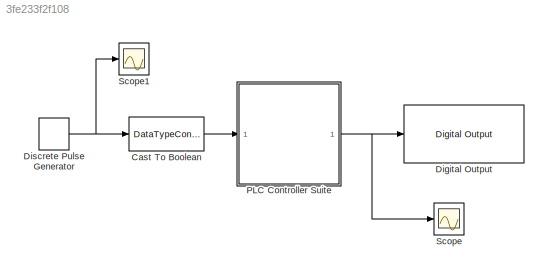
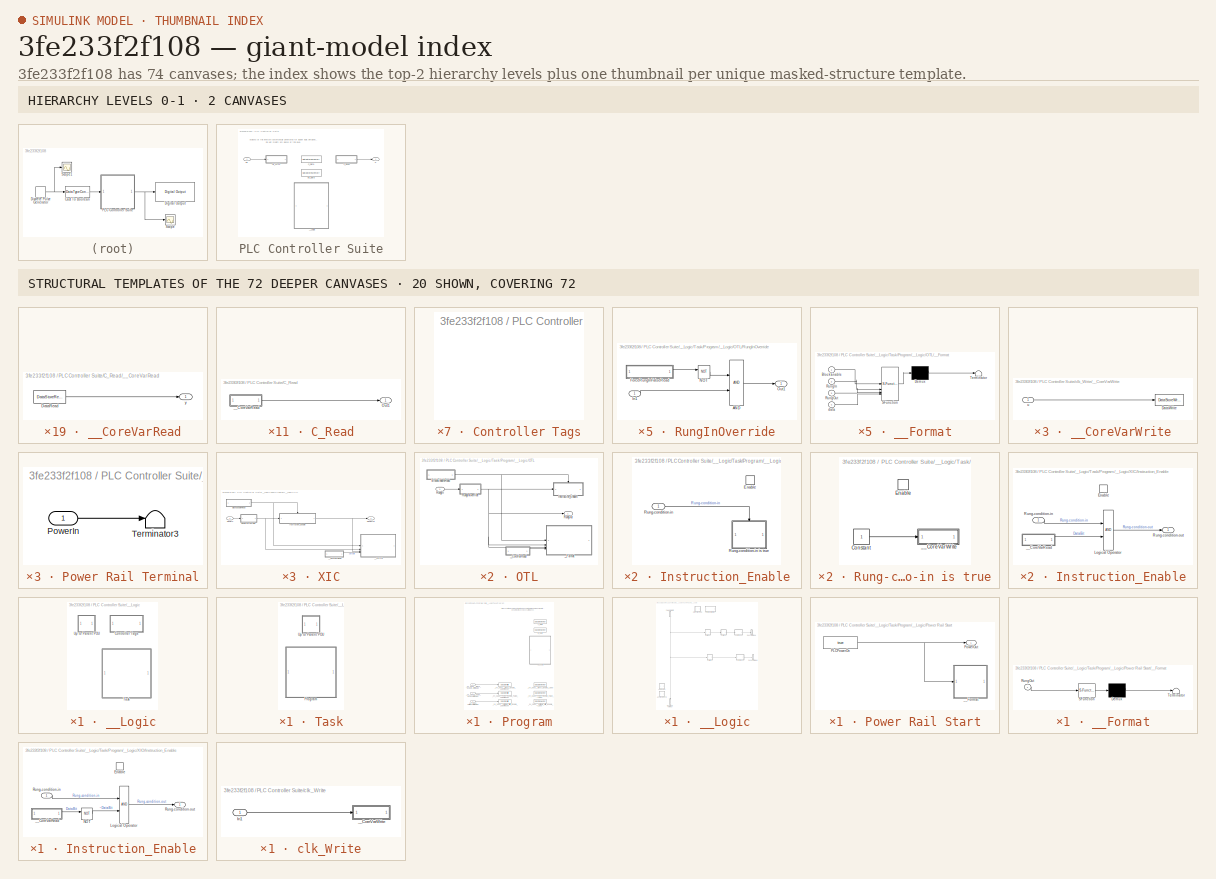
[diagram: thumbnail index - top-2 hierarchy levels (2 canvases) + 20 structural-template representatives of the remaining 72 canvases]
MODEL slx_3fe233f2f108
KIND model
CONFIG AbsTol = auto
CONFIG EnableMultiTasking = off
CONFIG FixedStep = auto
CONFIG MaxStep = auto
CONFIG MinStep = auto
CONFIG RelTol = 1e-3
CONFIG SampleTimeConstraint = Unconstrained
CONFIG SolverName = FixedStepAuto
CONFIG StartTime = 0.0
CONFIG StopTime = 10.0
BLOCK [DataTypeConversion] Cast To Boolean
  OutDataTypeStr = boolean
  RndMeth = Floor
  SaturateOnIntegerOverflow = off
BLOCK [Reference] Digital Output  REF=arduinolib/Digital Output
  SourceBlock = arduinolib/Digital Output
  SourceType = Arduino Digital Output
BLOCK [DiscretePulseGenerator] Discrete Pulse Generator
BLOCK [SubSystem] PLC Controller Suite
  NameLocation = top
  OpenFcn = slplc.callbacks.openPOUBlock(gcb);
  TreatAsAtomicUnit = on
BLOCK [Outport] PLC Controller Suite/C
BLOCK [DataStoreMemory] PLC Controller Suite/C_Data
  DataStoreName = xxx_PLC_VAR_C
  Dimensions = 1
  OutDataTypeStr = boolean
  Priority = 10
  ShowAdditionalParam = off
  SignalType = real
  Tag = POUVariable
BLOCK [SubSystem] PLC Controller Suite/C_Read
  DisableCoverage = on
  MaskHideContents = on
  Priority = 13
  ShowPortLabels = none
  TreatAsAtomicUnit = on
BLOCK [Outport] PLC Controller Suite/C_Read/Out1
  VectorParamsAs1DForOutWhenUnconnected = off
BLOCK [SubSystem] PLC Controller Suite/C_Read/__CoreVarRead
  DisableCoverage = on
  MaskHideContents = on
  ShowPortLabels = none
  Tag = CoreVarReadBlock
  TreatAsAtomicUnit = on
BLOCK [DataStoreRead] PLC Controller Suite/C_Read/__CoreVarRead/DataRead
  DataStoreName = xxx_PLC_VAR_C
  IndexOptions = Index vector (dialog)
  Indices = 1
  OutputSizes = 1
BLOCK [Outport] PLC Controller Suite/C_Read/__CoreVarRead/y
  VectorParamsAs1DForOutWhenUnconnected = off
BLOCK [SubSystem] PLC Controller Suite/__Logic
  Priority = 12
  TreatAsAtomicUnit = on
  UserDataPersistent = on
BLOCK [SubSystem] PLC Controller Suite/__Logic/Controller Tags
  DisableCoverage = on
  MaskHideContents = on
  OpenFcn = slplc.callbacks.openControllerVariableSS(gcb);
  Tag = ControllerVariableSS
  TreatAsAtomicUnit = on
  UserDataPersistent = on
BLOCK [SubSystem] PLC Controller Suite/__Logic/Task
  NameLocation = top
  OpenFcn = slplc.callbacks.openTaskBlock(gcb);
  TreatAsAtomicUnit = on
BLOCK [SubSystem] PLC Controller Suite/__Logic/Task/Program
  NameLocation = top
  OpenFcn = slplc.callbacks.openPOUBlock(gcb);
  TreatAsAtomicUnit = on
BLOCK [DataStoreMemory] PLC Controller Suite/__Logic/Task/Program/A_Data
  DataStoreName = xxx_PLC_VAR_A
  Dimensions = 1
  InitialValue = true
  OutDataTypeStr = BOOL
  Priority = 10
  ShowAdditionalParam = off
  SignalType = real
  Tag = POUVariable
BLOCK [DataStoreMemory] PLC Controller Suite/__Logic/Task/Program/B_Data
  DataStoreName = xxx_PLC_VAR_B
  Dimensions = 1
  InitialValue = false
  OutDataTypeStr = BOOL
  Priority = 10
  ShowAdditionalParam = off
  SignalType = real
  Tag = POUVariable
BLOCK [SubSystem] PLC Controller Suite/__Logic/Task/Program/__Logic
  Priority = 12
  TreatAsAtomicUnit = on
  UserDataPersistent = on
BLOCK [SubSystem] PLC Controller Suite/__Logic/Task/Program/__Logic/Add Rungs
  DisableCoverage = on
  MaskHideContents = on
  TreatAsAtomicUnit = on
BLOCK [SubSystem] PLC Controller Suite/__Logic/Task/Program/__Logic/Add Single Rung
  DisableCoverage = on
  MaskHideContents = on
  OpenFcn = slplc.callbacks.addLadderRungs(gcb);
  TreatAsAtomicUnit = on
BLOCK [SubSystem] PLC Controller Suite/__Logic/Task/Program/__Logic/OTL
  AttributesFormatString = %<PLCOperandTag>
  MaskHideContents = on
  NameLocation = top
  Priority = 4
  TreatAsAtomicUnit = on
BLOCK [SubSystem] PLC Controller Suite/__Logic/Task/Program/__Logic/OTL/BlockEnableRead
  DisableCoverage = on
  MaskHideContents = on
  ShowPortLabels = none
  TreatAsAtomicUnit = on
BLOCK [Outport] PLC Controller Suite/__Logic/Task/Program/__Logic/OTL/BlockEnableRead/Out1
  VectorParamsAs1DForOutWhenUnconnected = off
BLOCK [SubSystem] PLC Controller Suite/__Logic/Task/Program/__Logic/OTL/BlockEnableRead/__CoreLabelRead
  DisableCoverage = on
  MaskHideContents = on
  ShowPortLabels = none
  Tag = CoreVarReadBlock
  TreatAsAtomicUnit = on
BLOCK [DataStoreRead] PLC Controller Suite/__Logic/Task/Program/__Logic/OTL/BlockEnableRead/__CoreLabelRead/DataRead
  DataStoreName = x_PLCLabel__s4_3653__Block_Enable
  IndexOptions = Index vector (dialog)
  Indices = 1
  OutputSizes = 1
BLOCK [Outport] PLC Controller Suite/__Logic/Task/Program/__Logic/OTL/BlockEnableRead/__CoreLabelRead/Out1
  VectorParamsAs1DForOutWhenUnconnected = off
BLOCK [SubSystem] PLC Controller Suite/__Logic/Task/Program/__Logic/OTL/Instruction_Enable
  Priority = 12
  TreatAsAtomicUnit = on
BLOCK [EnablePort] PLC Controller Suite/__Logic/Task/Program/__Logic/OTL/Instruction_Enable/Enable
BLOCK [Inport] PLC Controller Suite/__Logic/Task/Program/__Logic/OTL/Instruction_Enable/Rung-condition-in
  OutDataTypeStr = BOOL
BLOCK [SubSystem] PLC Controller Suite/__Logic/Task/Program/__Logic/OTL/Instruction_Enable/Rung-condition-in is true
  Priority = 12
BLOCK [Constant] PLC Controller Suite/__Logic/Task/Program/__Logic/OTL/Instruction_Enable/Rung-condition-in is true/Constant
  OutDataTypeStr = BOOL
BLOCK [EnablePort] PLC Controller Suite/__Logic/Task/Program/__Logic/OTL/Instruction_Enable/Rung-condition-in is true/Enable
BLOCK [SubSystem] PLC Controller Suite/__Logic/Task/Program/__Logic/OTL/Instruction_Enable/Rung-condition-in is true/__CoreVarWrite
  DisableCoverage = on
  MaskHideContents = on
  ShowPortLabels = none
  Tag = CoreVarWriteBlock
  TreatAsAtomicUnit = on
BLOCK [DataStoreWrite] PLC Controller Suite/__Logic/Task/Program/__Logic/OTL/Instruction_Enable/Rung-condition-in is true/__CoreVarWrite/DataWrite
  DataStoreName = xxx_PLC_VAR_C
  IndexOptions = Index vector (dialog)
  Indices = 1
  OutputSizes = 1
BLOCK [Inport] PLC Controller Suite/__Logic/Task/Program/__Logic/OTL/Instruction_Enable/Rung-condition-in is true/__CoreVarWrite/u
BLOCK [Inport] PLC Controller Suite/__Logic/Task/Program/__Logic/OTL/RungIn
  PortDimensions = 1
  VarSizeSig = No
BLOCK [SubSystem] PLC Controller Suite/__Logic/Task/Program/__Logic/OTL/RungInOverride
  DisableCoverage = on
  MaskHideContents = on
  TreatAsAtomicUnit = on
BLOCK [Logic] PLC Controller Suite/__Logic/Task/Program/__Logic/OTL/RungInOverride/AND
  AllPortsSameDT = off
  OutDataTypeStr = boolean
BLOCK [SubSystem] PLC Controller Suite/__Logic/Task/Program/__Logic/OTL/RungInOverride/ForceRungInFalseRead
  DisableCoverage = on
  MaskHideContents = on
  ShowPortLabels = none
  TreatAsAtomicUnit = on
BLOCK [Outport] PLC Controller Suite/__Logic/Task/Program/__Logic/OTL/RungInOverride/ForceRungInFalseRead/Out1
  VectorParamsAs1DForOutWhenUnconnected = off
BLOCK [SubSystem] PLC Controller Suite/__Logic/Task/Program/__Logic/OTL/RungInOverride/ForceRungInFalseRead/__CoreLabelRead
  DisableCoverage = on
  MaskHideContents = on
  ShowPortLabels = none
  Tag = CoreVarReadBlock
  TreatAsAtomicUnit = on
BLOCK [DataStoreRead] PLC Controller Suite/__Logic/Task/Program/__Logic/OTL/RungInOverride/ForceRungInFalseRead/__CoreLabelRead/DataRead
  DataStoreName = x_PLCLabel__s4_3653__Force_RungIn_False
  IndexOptions = Index vector (dialog)
  Indices = 1
  OutputSizes = 1
BLOCK [Outport] PLC Controller Suite/__Logic/Task/Program/__Logic/OTL/RungInOverride/ForceRungInFalseRead/__CoreLabelRead/Out1
  VectorParamsAs1DForOutWhenUnconnected = off
BLOCK [Inport] PLC Controller Suite/__Logic/Task/Program/__Logic/OTL/RungInOverride/In1
BLOCK [Logic] PLC Controller Suite/__Logic/Task/Program/__Logic/OTL/RungInOverride/NOT
  AllPortsSameDT = off
  IconShape = distinctive
  Operator = NOT
  OutDataTypeStr = boolean
BLOCK [Outport] PLC Controller Suite/__Logic/Task/Program/__Logic/OTL/RungInOverride/Out1
  VectorParamsAs1DForOutWhenUnconnected = off
BLOCK [Outport] PLC Controller Suite/__Logic/Task/Program/__Logic/OTL/RungOut
  InitialOutput = false
  OutDataTypeStr = BOOL
  PortDimensions = 1
  VarSizeSig = No
  VectorParamsAs1DForOutWhenUnconnected = off
BLOCK [SubSystem] PLC Controller Suite/__Logic/Task/Program/__Logic/OTL/__CoreVarRead
  DisableCoverage = on
  MaskHideContents = on
  ShowPortLabels = none
  Tag = CoreVarReadBlock
  TreatAsAtomicUnit = on
BLOCK [DataStoreRead] PLC Controller Suite/__Logic/Task/Program/__Logic/OTL/__CoreVarRead/DataRead
  DataStoreName = xxx_PLC_VAR_C
  IndexOptions = Index vector (dialog)
  Indices = 1
  OutputSizes = 1
BLOCK [Outport] PLC Controller Suite/__Logic/Task/Program/__Logic/OTL/__CoreVarRead/y
  VectorParamsAs1DForOutWhenUnconnected = off
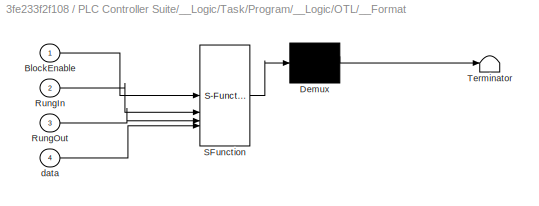
BLOCK [SubSystem] PLC Controller Suite/__Logic/Task/Program/__Logic/OTL/__Format
  DisableCoverage = on
  ErrorFcn = Stateflow.Translate.translate
  InitFcn = slplc.utils.setBlockAppearance('reset', '%<PLCOperandTag>');
  MaskHideContents = on
  PermitHierarchicalResolution = ExplicitOnly
  Priority = 20
  SFBlockType = MATLAB Function
  StopFcn = slplc.utils.setBlockAppearance('reset', '%<PLCOperandTag>');
  Tag = PLC_Format_Boolean
  TreatAsAtomicUnit = on
BLOCK [Demux] PLC Controller Suite/__Logic/Task/Program/__Logic/OTL/__Format/ Demux 
  Outputs = 1
BLOCK [S-Function] PLC Controller Suite/__Logic/Task/Program/__Logic/OTL/__Format/ SFunction 
  EnableBusSupport = on
  FunctionName = sf_sfun
  PortCounts = [4 1]
  SFcnIsStateOwnerBlock = off
  SFunctionDeploymentMode = off
  Tag = Stateflow S-Function 6
BLOCK [Terminator] PLC Controller Suite/__Logic/Task/Program/__Logic/OTL/__Format/ Terminator 
BLOCK [Inport] PLC Controller Suite/__Logic/Task/Program/__Logic/OTL/__Format/BlockEnable
BLOCK [Inport] PLC Controller Suite/__Logic/Task/Program/__Logic/OTL/__Format/RungIn
  Port = 2
BLOCK [Inport] PLC Controller Suite/__Logic/Task/Program/__Logic/OTL/__Format/RungOut
  Port = 3
BLOCK [Inport] PLC Controller Suite/__Logic/Task/Program/__Logic/OTL/__Format/data
  Port = 4
BLOCK [SubSystem] PLC Controller Suite/__Logic/Task/Program/__Logic/OTU
  AttributesFormatString = %<PLCOperandTag>
  MaskHideContents = on
  NameLocation = top
  Priority = 7
  TreatAsAtomicUnit = on
BLOCK [SubSystem] PLC Controller Suite/__Logic/Task/Program/__Logic/OTU/BlockEnableRead
  DisableCoverage = on
  MaskHideContents = on
  ShowPortLabels = none
  TreatAsAtomicUnit = on
BLOCK [Outport] PLC Controller Suite/__Logic/Task/Program/__Logic/OTU/BlockEnableRead/Out1
  VectorParamsAs1DForOutWhenUnconnected = off
BLOCK [SubSystem] PLC Controller Suite/__Logic/Task/Program/__Logic/OTU/BlockEnableRead/__CoreLabelRead
  DisableCoverage = on
  MaskHideContents = on
  ShowPortLabels = none
  Tag = CoreVarReadBlock
  TreatAsAtomicUnit = on
BLOCK [DataStoreRead] PLC Controller Suite/__Logic/Task/Program/__Logic/OTU/BlockEnableRead/__CoreLabelRead/DataRead
  DataStoreName = x_PLCLabel__s4_3653__Block_Enable
  IndexOptions = Index vector (dialog)
  Indices = 1
  OutputSizes = 1
BLOCK [Outport] PLC Controller Suite/__Logic/Task/Program/__Logic/OTU/BlockEnableRead/__CoreLabelRead/Out1
  VectorParamsAs1DForOutWhenUnconnected = off
BLOCK [SubSystem] PLC Controller Suite/__Logic/Task/Program/__Logic/OTU/Instruction_Enable
  Priority = 12
  TreatAsAtomicUnit = on
BLOCK [EnablePort] PLC Controller Suite/__Logic/Task/Program/__Logic/OTU/Instruction_Enable/Enable
BLOCK [Inport] PLC Controller Suite/__Logic/Task/Program/__Logic/OTU/Instruction_Enable/Rung-condition-in
  OutDataTypeStr = BOOL
BLOCK [SubSystem] PLC Controller Suite/__Logic/Task/Program/__Logic/OTU/Instruction_Enable/Rung-condition-in is true
  Priority = 12
BLOCK [Constant] PLC Controller Suite/__Logic/Task/Program/__Logic/OTU/Instruction_Enable/Rung-condition-in is true/Constant
  OutDataTypeStr = BOOL
  Value = 0
BLOCK [EnablePort] PLC Controller Suite/__Logic/Task/Program/__Logic/OTU/Instruction_Enable/Rung-condition-in is true/Enable
BLOCK [SubSystem] PLC Controller Suite/__Logic/Task/Program/__Logic/OTU/Instruction_Enable/Rung-condition-in is true/__CoreVarWrite
  DisableCoverage = on
  MaskHideContents = on
  ShowPortLabels = none
  Tag = CoreVarWriteBlock
  TreatAsAtomicUnit = on
BLOCK [DataStoreWrite] PLC Controller Suite/__Logic/Task/Program/__Logic/OTU/Instruction_Enable/Rung-condition-in is true/__CoreVarWrite/DataWrite
  DataStoreName = xxx_PLC_VAR_C
  IndexOptions = Index vector (dialog)
  Indices = 1
  OutputSizes = 1
BLOCK [Inport] PLC Controller Suite/__Logic/Task/Program/__Logic/OTU/Instruction_Enable/Rung-condition-in is true/__CoreVarWrite/u
BLOCK [Inport] PLC Controller Suite/__Logic/Task/Program/__Logic/OTU/RungIn
  PortDimensions = 1
  VarSizeSig = No
BLOCK [SubSystem] PLC Controller Suite/__Logic/Task/Program/__Logic/OTU/RungInOverride
  DisableCoverage = on
  MaskHideContents = on
  TreatAsAtomicUnit = on
BLOCK [Logic] PLC Controller Suite/__Logic/Task/Program/__Logic/OTU/RungInOverride/AND
  AllPortsSameDT = off
  OutDataTypeStr = boolean
BLOCK [SubSystem] PLC Controller Suite/__Logic/Task/Program/__Logic/OTU/RungInOverride/ForceRungInFalseRead
  DisableCoverage = on
  MaskHideContents = on
  ShowPortLabels = none
  TreatAsAtomicUnit = on
BLOCK [Outport] PLC Controller Suite/__Logic/Task/Program/__Logic/OTU/RungInOverride/ForceRungInFalseRead/Out1
  VectorParamsAs1DForOutWhenUnconnected = off
BLOCK [SubSystem] PLC Controller Suite/__Logic/Task/Program/__Logic/OTU/RungInOverride/ForceRungInFalseRead/__CoreLabelRead
  DisableCoverage = on
  MaskHideContents = on
  ShowPortLabels = none
  Tag = CoreVarReadBlock
  TreatAsAtomicUnit = on
BLOCK [DataStoreRead] PLC Controller Suite/__Logic/Task/Program/__Logic/OTU/RungInOverride/ForceRungInFalseRead/__CoreLabelRead/DataRead
  DataStoreName = x_PLCLabel__s4_3653__Force_RungIn_False
  IndexOptions = Index vector (dialog)
  Indices = 1
  OutputSizes = 1
BLOCK [Outport] PLC Controller Suite/__Logic/Task/Program/__Logic/OTU/RungInOverride/ForceRungInFalseRead/__CoreLabelRead/Out1
  VectorParamsAs1DForOutWhenUnconnected = off
BLOCK [Inport] PLC Controller Suite/__Logic/Task/Program/__Logic/OTU/RungInOverride/In1
BLOCK [Logic] PLC Controller Suite/__Logic/Task/Program/__Logic/OTU/RungInOverride/NOT
  AllPortsSameDT = off
  IconShape = distinctive
  Operator = NOT
  OutDataTypeStr = boolean
BLOCK [Outport] PLC Controller Suite/__Logic/Task/Program/__Logic/OTU/RungInOverride/Out1
  VectorParamsAs1DForOutWhenUnconnected = off
BLOCK [Outport] PLC Controller Suite/__Logic/Task/Program/__Logic/OTU/RungOut
  InitialOutput = false
  OutDataTypeStr = BOOL
  PortDimensions = 1
  VarSizeSig = No
  VectorParamsAs1DForOutWhenUnconnected = off
BLOCK [SubSystem] PLC Controller Suite/__Logic/Task/Program/__Logic/OTU/__CoreVarRead
  DisableCoverage = on
  MaskHideContents = on
  ShowPortLabels = none
  Tag = CoreVarReadBlock
  TreatAsAtomicUnit = on
BLOCK [DataStoreRead] PLC Controller Suite/__Logic/Task/Program/__Logic/OTU/__CoreVarRead/DataRead
  DataStoreName = xxx_PLC_VAR_C
  IndexOptions = Index vector (dialog)
  Indices = 1
  OutputSizes = 1
BLOCK [Outport] PLC Controller Suite/__Logic/Task/Program/__Logic/OTU/__CoreVarRead/y
  VectorParamsAs1DForOutWhenUnconnected = off
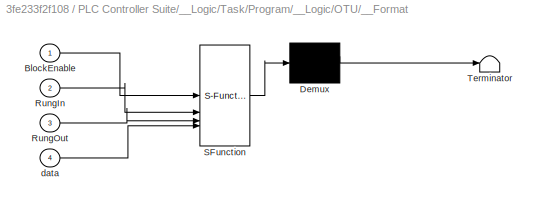
BLOCK [SubSystem] PLC Controller Suite/__Logic/Task/Program/__Logic/OTU/__Format
  DisableCoverage = on
  ErrorFcn = Stateflow.Translate.translate
  InitFcn = slplc.utils.setBlockAppearance('reset', '%<PLCOperandTag>');
  MaskHideContents = on
  PermitHierarchicalResolution = ExplicitOnly
  Priority = 20
  SFBlockType = MATLAB Function
  StopFcn = slplc.utils.setBlockAppearance('reset', '%<PLCOperandTag>');
  Tag = PLC_Format_Boolean
  TreatAsAtomicUnit = on
BLOCK [Demux] PLC Controller Suite/__Logic/Task/Program/__Logic/OTU/__Format/ Demux 
  Outputs = 1
BLOCK [S-Function] PLC Controller Suite/__Logic/Task/Program/__Logic/OTU/__Format/ SFunction 
  EnableBusSupport = on
  FunctionName = sf_sfun
  PortCounts = [4 1]
  SFcnIsStateOwnerBlock = off
  SFunctionDeploymentMode = off
  Tag = Stateflow S-Function 9
BLOCK [Terminator] PLC Controller Suite/__Logic/Task/Program/__Logic/OTU/__Format/ Terminator 
BLOCK [Inport] PLC Controller Suite/__Logic/Task/Program/__Logic/OTU/__Format/BlockEnable
BLOCK [Inport] PLC Controller Suite/__Logic/Task/Program/__Logic/OTU/__Format/RungIn
  Port = 2
BLOCK [Inport] PLC Controller Suite/__Logic/Task/Program/__Logic/OTU/__Format/RungOut
  Port = 3
BLOCK [Inport] PLC Controller Suite/__Logic/Task/Program/__Logic/OTU/__Format/data
  Port = 4
BLOCK [SubSystem] PLC Controller Suite/__Logic/Task/Program/__Logic/Power Rail Start
  DisableCoverage = on
  MaskHideContents = on
  Priority = 1
  ShowPortLabels = none
  TreatAsAtomicUnit = on
BLOCK [Constant] PLC Controller Suite/__Logic/Task/Program/__Logic/Power Rail Start/PLCPowerOn
  OutDataTypeStr = BOOL
  Value = true
BLOCK [Outport] PLC Controller Suite/__Logic/Task/Program/__Logic/Power Rail Start/PowerOut
  VectorParamsAs1DForOutWhenUnconnected = off
BLOCK [SubSystem] PLC Controller Suite/__Logic/Task/Program/__Logic/Power Rail Start/__Format
  DisableCoverage = on
  ErrorFcn = Stateflow.Translate.translate
  InitFcn = slplc.utils.setBlockAppearance('reset', '', {'black', 'black'});
  MaskHideContents = on
  PermitHierarchicalResolution = ExplicitOnly
  Priority = 20
  SFBlockType = MATLAB Function
  StopFcn = slplc.utils.setBlockAppearance('reset', '', {'black', 'black'});
  Tag = PLC_Format_ENO
  TreatAsAtomicUnit = on
BLOCK [Demux] PLC Controller Suite/__Logic/Task/Program/__Logic/Power Rail Start/__Format/ Demux 
  Outputs = 1
BLOCK [S-Function] PLC Controller Suite/__Logic/Task/Program/__Logic/Power Rail Start/__Format/ SFunction 
  EnableBusSupport = on
  FunctionName = sf_sfun
  PortCounts = [1 1]
  SFcnIsStateOwnerBlock = off
  SFunctionDeploymentMode = off
  Tag = Stateflow S-Function 68
BLOCK [Terminator] PLC Controller Suite/__Logic/Task/Program/__Logic/Power Rail Start/__Format/ Terminator 
BLOCK [Inport] PLC Controller Suite/__Logic/Task/Program/__Logic/Power Rail Start/__Format/RungOut
BLOCK [SubSystem] PLC Controller Suite/__Logic/Task/Program/__Logic/Power Rail Terminal
  DisableCoverage = on
  MaskHideContents = on
  Priority = 7
  ShowPortLabels = none
  TreatAsAtomicUnit = on
BLOCK [Inport] PLC Controller Suite/__Logic/Task/Program/__Logic/Power Rail Terminal/PowerIn
BLOCK [Terminator] PLC Controller Suite/__Logic/Task/Program/__Logic/Power Rail Terminal/Terminator3
BLOCK [SubSystem] PLC Controller Suite/__Logic/Task/Program/__Logic/Program Variables
  DisableCoverage = on
  MaskHideContents = on
  OpenFcn = slplc.callbacks.openProgramVariableSS(gcb);
  Tag = ProgramVariableSS
  TreatAsAtomicUnit = on
  UserDataPersistent = on
BLOCK [SubSystem] PLC Controller Suite/__Logic/Task/Program/__Logic/Rung Terminal1
  AttributesFormatString = Rung %<PLCRungTerminalIndex>
  DisableCoverage = on
  MaskHideContents = on
  NameLocation = top
  Priority = 5
  ShowPortLabels = none
  TreatAsAtomicUnit = on
BLOCK [Inport] PLC Controller Suite/__Logic/Task/Program/__Logic/Rung Terminal1/RungIn
BLOCK [Terminator] PLC Controller Suite/__Logic/Task/Program/__Logic/Rung Terminal1/Terminator
BLOCK [SubSystem] PLC Controller Suite/__Logic/Task/Program/__Logic/Rung Terminal2
  AttributesFormatString = Rung %<PLCRungTerminalIndex>
  DisableCoverage = on
  MaskHideContents = on
  NameLocation = top
  Priority = 8
  ShowPortLabels = none
  TreatAsAtomicUnit = on
BLOCK [Inport] PLC Controller Suite/__Logic/Task/Program/__Logic/Rung Terminal2/RungIn
BLOCK [Terminator] PLC Controller Suite/__Logic/Task/Program/__Logic/Rung Terminal2/Terminator
BLOCK [SubSystem] PLC Controller Suite/__Logic/Task/Program/__Logic/Up to Parent POU
  DisableCoverage = on
  MaskHideContents = on
  OpenFcn = slplc.callbacks.openParentPOUBlock(gcb);
  TreatAsAtomicUnit = on
BLOCK [SubSystem] PLC Controller Suite/__Logic/Task/Program/__Logic/XIC
  AttributesFormatString = %<PLCOperandTag>
  MaskHideContents = on
  NameLocation = top
  Priority = 3
  TreatAsAtomicUnit = on
BLOCK [SubSystem] PLC Controller Suite/__Logic/Task/Program/__Logic/XIC/BlockEnableRead
  DisableCoverage = on
  MaskHideContents = on
  ShowPortLabels = none
  TreatAsAtomicUnit = on
BLOCK [Outport] PLC Controller Suite/__Logic/Task/Program/__Logic/XIC/BlockEnableRead/Out1
  VectorParamsAs1DForOutWhenUnconnected = off
BLOCK [SubSystem] PLC Controller Suite/__Logic/Task/Program/__Logic/XIC/BlockEnableRead/__CoreLabelRead
  DisableCoverage = on
  MaskHideContents = on
  ShowPortLabels = none
  Tag = CoreVarReadBlock
  TreatAsAtomicUnit = on
BLOCK [DataStoreRead] PLC Controller Suite/__Logic/Task/Program/__Logic/XIC/BlockEnableRead/__CoreLabelRead/DataRead
  DataStoreName = x_PLCLabel__s4_3653__Block_Enable
  IndexOptions = Index vector (dialog)
  Indices = 1
  OutputSizes = 1
BLOCK [Outport] PLC Controller Suite/__Logic/Task/Program/__Logic/XIC/BlockEnableRead/__CoreLabelRead/Out1
  VectorParamsAs1DForOutWhenUnconnected = off
BLOCK [SubSystem] PLC Controller Suite/__Logic/Task/Program/__Logic/XIC/Instruction_Enable
  Priority = 12
  TreatAsAtomicUnit = on
BLOCK [EnablePort] PLC Controller Suite/__Logic/Task/Program/__Logic/XIC/Instruction_Enable/Enable
BLOCK [Logic] PLC Controller Suite/__Logic/Task/Program/__Logic/XIC/Instruction_Enable/Logical Operator
  OutDataTypeStr = BOOL
BLOCK [Inport] PLC Controller Suite/__Logic/Task/Program/__Logic/XIC/Instruction_Enable/Rung-condition-in
  OutDataTypeStr = BOOL
BLOCK [Outport] PLC Controller Suite/__Logic/Task/Program/__Logic/XIC/Instruction_Enable/Rung-condition-out
  VectorParamsAs1DForOutWhenUnconnected = off
BLOCK [SubSystem] PLC Controller Suite/__Logic/Task/Program/__Logic/XIC/Instruction_Enable/__CoreVarRead
  DisableCoverage = on
  MaskHideContents = on
  ShowPortLabels = none
  Tag = CoreVarReadBlock
  TreatAsAtomicUnit = on
BLOCK [DataStoreRead] PLC Controller Suite/__Logic/Task/Program/__Logic/XIC/Instruction_Enable/__CoreVarRead/DataRead
  DataStoreName = xxx_PLC_VAR_A
  IndexOptions = Index vector (dialog)
  Indices = 1
  OutputSizes = 1
BLOCK [Outport] PLC Controller Suite/__Logic/Task/Program/__Logic/XIC/Instruction_Enable/__CoreVarRead/y
  VectorParamsAs1DForOutWhenUnconnected = off
BLOCK [Inport] PLC Controller Suite/__Logic/Task/Program/__Logic/XIC/RungIn
  PortDimensions = 1
  VarSizeSig = No
BLOCK [SubSystem] PLC Controller Suite/__Logic/Task/Program/__Logic/XIC/RungInOverride
  DisableCoverage = on
  MaskHideContents = on
  TreatAsAtomicUnit = on
BLOCK [Logic] PLC Controller Suite/__Logic/Task/Program/__Logic/XIC/RungInOverride/AND
  AllPortsSameDT = off
  OutDataTypeStr = boolean
BLOCK [SubSystem] PLC Controller Suite/__Logic/Task/Program/__Logic/XIC/RungInOverride/ForceRungInFalseRead
  DisableCoverage = on
  MaskHideContents = on
  ShowPortLabels = none
  TreatAsAtomicUnit = on
BLOCK [Outport] PLC Controller Suite/__Logic/Task/Program/__Logic/XIC/RungInOverride/ForceRungInFalseRead/Out1
  VectorParamsAs1DForOutWhenUnconnected = off
BLOCK [SubSystem] PLC Controller Suite/__Logic/Task/Program/__Logic/XIC/RungInOverride/ForceRungInFalseRead/__CoreLabelRead
  DisableCoverage = on
  MaskHideContents = on
  ShowPortLabels = none
  Tag = CoreVarReadBlock
  TreatAsAtomicUnit = on
BLOCK [DataStoreRead] PLC Controller Suite/__Logic/Task/Program/__Logic/XIC/RungInOverride/ForceRungInFalseRead/__CoreLabelRead/DataRead
  DataStoreName = x_PLCLabel__s4_3653__Force_RungIn_False
  IndexOptions = Index vector (dialog)
  Indices = 1
  OutputSizes = 1
BLOCK [Outport] PLC Controller Suite/__Logic/Task/Program/__Logic/XIC/RungInOverride/ForceRungInFalseRead/__CoreLabelRead/Out1
  VectorParamsAs1DForOutWhenUnconnected = off
BLOCK [Inport] PLC Controller Suite/__Logic/Task/Program/__Logic/XIC/RungInOverride/In1
BLOCK [Logic] PLC Controller Suite/__Logic/Task/Program/__Logic/XIC/RungInOverride/NOT
  AllPortsSameDT = off
  IconShape = distinctive
  Operator = NOT
  OutDataTypeStr = boolean
BLOCK [Outport] PLC Controller Suite/__Logic/Task/Program/__Logic/XIC/RungInOverride/Out1
  VectorParamsAs1DForOutWhenUnconnected = off
BLOCK [Outport] PLC Controller Suite/__Logic/Task/Program/__Logic/XIC/RungOut
  InitialOutput = false
  OutDataTypeStr = BOOL
  PortDimensions = 1
  VarSizeSig = No
  VectorParamsAs1DForOutWhenUnconnected = off
BLOCK [SubSystem] PLC Controller Suite/__Logic/Task/Program/__Logic/XIC/__CoreVarRead
  DisableCoverage = on
  MaskHideContents = on
  ShowPortLabels = none
  Tag = CoreVarReadBlock
  TreatAsAtomicUnit = on
BLOCK [DataStoreRead] PLC Controller Suite/__Logic/Task/Program/__Logic/XIC/__CoreVarRead/DataRead
  DataStoreName = xxx_PLC_VAR_A
  IndexOptions = Index vector (dialog)
  Indices = 1
  OutputSizes = 1
BLOCK [Outport] PLC Controller Suite/__Logic/Task/Program/__Logic/XIC/__CoreVarRead/y
  VectorParamsAs1DForOutWhenUnconnected = off
BLOCK [SubSystem] PLC Controller Suite/__Logic/Task/Program/__Logic/XIC/__Format
  DisableCoverage = on
  ErrorFcn = Stateflow.Translate.translate
  InitFcn = slplc.utils.setBlockAppearance('reset', '%<PLCOperandTag>');
  MaskHideContents = on
  PermitHierarchicalResolution = ExplicitOnly
  Priority = 20
  SFBlockType = MATLAB Function
  StopFcn = slplc.utils.setBlockAppearance('reset', '%<PLCOperandTag>');
  Tag = PLC_Format_Boolean
  TreatAsAtomicUnit = on
BLOCK [Demux] PLC Controller Suite/__Logic/Task/Program/__Logic/XIC/__Format/ Demux 
  Outputs = 1
BLOCK [S-Function] PLC Controller Suite/__Logic/Task/Program/__Logic/XIC/__Format/ SFunction 
  EnableBusSupport = on
  FunctionName = sf_sfun
  PortCounts = [4 1]
  SFcnIsStateOwnerBlock = off
  SFunctionDeploymentMode = off
  Tag = Stateflow S-Function 1
BLOCK [Terminator] PLC Controller Suite/__Logic/Task/Program/__Logic/XIC/__Format/ Terminator 
BLOCK [Inport] PLC Controller Suite/__Logic/Task/Program/__Logic/XIC/__Format/BlockEnable
BLOCK [Inport] PLC Controller Suite/__Logic/Task/Program/__Logic/XIC/__Format/RungIn
  Port = 2
BLOCK [Inport] PLC Controller Suite/__Logic/Task/Program/__Logic/XIC/__Format/RungOut
  Port = 3
BLOCK [Inport] PLC Controller Suite/__Logic/Task/Program/__Logic/XIC/__Format/data
  Port = 4
BLOCK [SubSystem] PLC Controller Suite/__Logic/Task/Program/__Logic/XIC2
  AttributesFormatString = %<PLCOperandTag>
  MaskHideContents = on
  NameLocation = top
  Priority = 2
  TreatAsAtomicUnit = on
BLOCK [SubSystem] PLC Controller Suite/__Logic/Task/Program/__Logic/XIC2/BlockEnableRead
  DisableCoverage = on
  MaskHideContents = on
  ShowPortLabels = none
  TreatAsAtomicUnit = on
BLOCK [Outport] PLC Controller Suite/__Logic/Task/Program/__Logic/XIC2/BlockEnableRead/Out1
  VectorParamsAs1DForOutWhenUnconnected = off
BLOCK [SubSystem] PLC Controller Suite/__Logic/Task/Program/__Logic/XIC2/BlockEnableRead/__CoreLabelRead
  DisableCoverage = on
  MaskHideContents = on
  ShowPortLabels = none
  Tag = CoreVarReadBlock
  TreatAsAtomicUnit = on
BLOCK [DataStoreRead] PLC Controller Suite/__Logic/Task/Program/__Logic/XIC2/BlockEnableRead/__CoreLabelRead/DataRead
  DataStoreName = x_PLCLabel__s4_3653__Block_Enable
  IndexOptions = Index vector (dialog)
  Indices = 1
  OutputSizes = 1
BLOCK [Outport] PLC Controller Suite/__Logic/Task/Program/__Logic/XIC2/BlockEnableRead/__CoreLabelRead/Out1
  VectorParamsAs1DForOutWhenUnconnected = off
BLOCK [SubSystem] PLC Controller Suite/__Logic/Task/Program/__Logic/XIC2/Instruction_Enable
  Priority = 12
  TreatAsAtomicUnit = on
BLOCK [EnablePort] PLC Controller Suite/__Logic/Task/Program/__Logic/XIC2/Instruction_Enable/Enable
BLOCK [Logic] PLC Controller Suite/__Logic/Task/Program/__Logic/XIC2/Instruction_Enable/Logical Operator
  OutDataTypeStr = BOOL
BLOCK [Inport] PLC Controller Suite/__Logic/Task/Program/__Logic/XIC2/Instruction_Enable/Rung-condition-in
  OutDataTypeStr = BOOL
BLOCK [Outport] PLC Controller Suite/__Logic/Task/Program/__Logic/XIC2/Instruction_Enable/Rung-condition-out
  VectorParamsAs1DForOutWhenUnconnected = off
BLOCK [SubSystem] PLC Controller Suite/__Logic/Task/Program/__Logic/XIC2/Instruction_Enable/__CoreVarRead
  DisableCoverage = on
  MaskHideContents = on
  ShowPortLabels = none
  Tag = CoreVarReadBlock
  TreatAsAtomicUnit = on
BLOCK [DataStoreRead] PLC Controller Suite/__Logic/Task/Program/__Logic/XIC2/Instruction_Enable/__CoreVarRead/DataRead
  DataStoreName = xxx_PLC_VAR_clk
  IndexOptions = Index vector (dialog)
  Indices = 1
  OutputSizes = 1
BLOCK [Outport] PLC Controller Suite/__Logic/Task/Program/__Logic/XIC2/Instruction_Enable/__CoreVarRead/y
  VectorParamsAs1DForOutWhenUnconnected = off
BLOCK [Inport] PLC Controller Suite/__Logic/Task/Program/__Logic/XIC2/RungIn
  PortDimensions = 1
  VarSizeSig = No
BLOCK [SubSystem] PLC Controller Suite/__Logic/Task/Program/__Logic/XIC2/RungInOverride
  DisableCoverage = on
  MaskHideContents = on
  TreatAsAtomicUnit = on
BLOCK [Logic] PLC Controller Suite/__Logic/Task/Program/__Logic/XIC2/RungInOverride/AND
  AllPortsSameDT = off
  OutDataTypeStr = boolean
BLOCK [SubSystem] PLC Controller Suite/__Logic/Task/Program/__Logic/XIC2/RungInOverride/ForceRungInFalseRead
  DisableCoverage = on
  MaskHideContents = on
  ShowPortLabels = none
  TreatAsAtomicUnit = on
BLOCK [Outport] PLC Controller Suite/__Logic/Task/Program/__Logic/XIC2/RungInOverride/ForceRungInFalseRead/Out1
  VectorParamsAs1DForOutWhenUnconnected = off
BLOCK [SubSystem] PLC Controller Suite/__Logic/Task/Program/__Logic/XIC2/RungInOverride/ForceRungInFalseRead/__CoreLabelRead
  DisableCoverage = on
  MaskHideContents = on
  ShowPortLabels = none
  Tag = CoreVarReadBlock
  TreatAsAtomicUnit = on
BLOCK [DataStoreRead] PLC Controller Suite/__Logic/Task/Program/__Logic/XIC2/RungInOverride/ForceRungInFalseRead/__CoreLabelRead/DataRead
  DataStoreName = x_PLCLabel__s4_3653__Force_RungIn_False
  IndexOptions = Index vector (dialog)
  Indices = 1
  OutputSizes = 1
BLOCK [Outport] PLC Controller Suite/__Logic/Task/Program/__Logic/XIC2/RungInOverride/ForceRungInFalseRead/__CoreLabelRead/Out1
  VectorParamsAs1DForOutWhenUnconnected = off
BLOCK [Inport] PLC Controller Suite/__Logic/Task/Program/__Logic/XIC2/RungInOverride/In1
BLOCK [Logic] PLC Controller Suite/__Logic/Task/Program/__Logic/XIC2/RungInOverride/NOT
  AllPortsSameDT = off
  IconShape = distinctive
  Operator = NOT
  OutDataTypeStr = boolean
BLOCK [Outport] PLC Controller Suite/__Logic/Task/Program/__Logic/XIC2/RungInOverride/Out1
  VectorParamsAs1DForOutWhenUnconnected = off
BLOCK [Outport] PLC Controller Suite/__Logic/Task/Program/__Logic/XIC2/RungOut
  InitialOutput = false
  OutDataTypeStr = BOOL
  PortDimensions = 1
  VarSizeSig = No
  VectorParamsAs1DForOutWhenUnconnected = off
BLOCK [SubSystem] PLC Controller Suite/__Logic/Task/Program/__Logic/XIC2/__CoreVarRead
  DisableCoverage = on
  MaskHideContents = on
  ShowPortLabels = none
  Tag = CoreVarReadBlock
  TreatAsAtomicUnit = on
BLOCK [DataStoreRead] PLC Controller Suite/__Logic/Task/Program/__Logic/XIC2/__CoreVarRead/DataRead
  DataStoreName = xxx_PLC_VAR_clk
  IndexOptions = Index vector (dialog)
  Indices = 1
  OutputSizes = 1
BLOCK [Outport] PLC Controller Suite/__Logic/Task/Program/__Logic/XIC2/__CoreVarRead/y
  VectorParamsAs1DForOutWhenUnconnected = off
BLOCK [SubSystem] PLC Controller Suite/__Logic/Task/Program/__Logic/XIC2/__Format
  DisableCoverage = on
  ErrorFcn = Stateflow.Translate.translate
  InitFcn = slplc.utils.setBlockAppearance('reset', '%<PLCOperandTag>');
  MaskHideContents = on
  PermitHierarchicalResolution = ExplicitOnly
  Priority = 20
  SFBlockType = MATLAB Function
  StopFcn = slplc.utils.setBlockAppearance('reset', '%<PLCOperandTag>');
  Tag = PLC_Format_Boolean
  TreatAsAtomicUnit = on
BLOCK [Demux] PLC Controller Suite/__Logic/Task/Program/__Logic/XIC2/__Format/ Demux 
  Outputs = 1
BLOCK [S-Function] PLC Controller Suite/__Logic/Task/Program/__Logic/XIC2/__Format/ SFunction 
  EnableBusSupport = on
  FunctionName = sf_sfun
  PortCounts = [4 1]
  SFcnIsStateOwnerBlock = off
  SFunctionDeploymentMode = off
  Tag = Stateflow S-Function 4
BLOCK [Terminator] PLC Controller Suite/__Logic/Task/Program/__Logic/XIC2/__Format/ Terminator 
BLOCK [Inport] PLC Controller Suite/__Logic/Task/Program/__Logic/XIC2/__Format/BlockEnable
BLOCK [Inport] PLC Controller Suite/__Logic/Task/Program/__Logic/XIC2/__Format/RungIn
  Port = 2
BLOCK [Inport] PLC Controller Suite/__Logic/Task/Program/__Logic/XIC2/__Format/RungOut
  Port = 3
BLOCK [Inport] PLC Controller Suite/__Logic/Task/Program/__Logic/XIC2/__Format/data
  Port = 4
BLOCK [SubSystem] PLC Controller Suite/__Logic/Task/Program/__Logic/XIO
  AttributesFormatString = %<PLCOperandTag>
  MaskHideContents = on
  NameLocation = top
  Priority = 6
  TreatAsAtomicUnit = on
BLOCK [SubSystem] PLC Controller Suite/__Logic/Task/Program/__Logic/XIO/BlockEnableRead
  DisableCoverage = on
  MaskHideContents = on
  ShowPortLabels = none
  TreatAsAtomicUnit = on
BLOCK [Outport] PLC Controller Suite/__Logic/Task/Program/__Logic/XIO/BlockEnableRead/Out1
  VectorParamsAs1DForOutWhenUnconnected = off
BLOCK [SubSystem] PLC Controller Suite/__Logic/Task/Program/__Logic/XIO/BlockEnableRead/__CoreLabelRead
  DisableCoverage = on
  MaskHideContents = on
  ShowPortLabels = none
  Tag = CoreVarReadBlock
  TreatAsAtomicUnit = on
BLOCK [DataStoreRead] PLC Controller Suite/__Logic/Task/Program/__Logic/XIO/BlockEnableRead/__CoreLabelRead/DataRead
  DataStoreName = x_PLCLabel__s4_3653__Block_Enable
  IndexOptions = Index vector (dialog)
  Indices = 1
  OutputSizes = 1
BLOCK [Outport] PLC Controller Suite/__Logic/Task/Program/__Logic/XIO/BlockEnableRead/__CoreLabelRead/Out1
  VectorParamsAs1DForOutWhenUnconnected = off
BLOCK [SubSystem] PLC Controller Suite/__Logic/Task/Program/__Logic/XIO/Instruction_Enable
  Priority = 12
  TreatAsAtomicUnit = on
BLOCK [EnablePort] PLC Controller Suite/__Logic/Task/Program/__Logic/XIO/Instruction_Enable/Enable
BLOCK [Logic] PLC Controller Suite/__Logic/Task/Program/__Logic/XIO/Instruction_Enable/Logical Operator
  OutDataTypeStr = BOOL
BLOCK [Logic] PLC Controller Suite/__Logic/Task/Program/__Logic/XIO/Instruction_Enable/NOT
  DisableCoverage = on
  IconShape = distinctive
  Operator = NOT
  OutDataTypeStr = BOOL
BLOCK [Inport] PLC Controller Suite/__Logic/Task/Program/__Logic/XIO/Instruction_Enable/Rung-condition-in
  OutDataTypeStr = BOOL
BLOCK [Outport] PLC Controller Suite/__Logic/Task/Program/__Logic/XIO/Instruction_Enable/Rung-condition-out
  VectorParamsAs1DForOutWhenUnconnected = off
BLOCK [SubSystem] PLC Controller Suite/__Logic/Task/Program/__Logic/XIO/Instruction_Enable/__CoreVarRead
  DisableCoverage = on
  MaskHideContents = on
  ShowPortLabels = none
  Tag = CoreVarReadBlock
  TreatAsAtomicUnit = on
BLOCK [DataStoreRead] PLC Controller Suite/__Logic/Task/Program/__Logic/XIO/Instruction_Enable/__CoreVarRead/DataRead
  DataStoreName = xxx_PLC_VAR_clk
  IndexOptions = Index vector (dialog)
  Indices = 1
  OutputSizes = 1
BLOCK [Outport] PLC Controller Suite/__Logic/Task/Program/__Logic/XIO/Instruction_Enable/__CoreVarRead/y
  VectorParamsAs1DForOutWhenUnconnected = off
BLOCK [Inport] PLC Controller Suite/__Logic/Task/Program/__Logic/XIO/RungIn
  PortDimensions = 1
  VarSizeSig = No
BLOCK [SubSystem] PLC Controller Suite/__Logic/Task/Program/__Logic/XIO/RungInOverride
  DisableCoverage = on
  MaskHideContents = on
  TreatAsAtomicUnit = on
BLOCK [Logic] PLC Controller Suite/__Logic/Task/Program/__Logic/XIO/RungInOverride/AND
  AllPortsSameDT = off
  OutDataTypeStr = boolean
BLOCK [SubSystem] PLC Controller Suite/__Logic/Task/Program/__Logic/XIO/RungInOverride/ForceRungInFalseRead
  DisableCoverage = on
  MaskHideContents = on
  ShowPortLabels = none
  TreatAsAtomicUnit = on
BLOCK [Outport] PLC Controller Suite/__Logic/Task/Program/__Logic/XIO/RungInOverride/ForceRungInFalseRead/Out1
  VectorParamsAs1DForOutWhenUnconnected = off
BLOCK [SubSystem] PLC Controller Suite/__Logic/Task/Program/__Logic/XIO/RungInOverride/ForceRungInFalseRead/__CoreLabelRead
  DisableCoverage = on
  MaskHideContents = on
  ShowPortLabels = none
  Tag = CoreVarReadBlock
  TreatAsAtomicUnit = on
BLOCK [DataStoreRead] PLC Controller Suite/__Logic/Task/Program/__Logic/XIO/RungInOverride/ForceRungInFalseRead/__CoreLabelRead/DataRead
  DataStoreName = x_PLCLabel__s4_3653__Force_RungIn_False
  IndexOptions = Index vector (dialog)
  Indices = 1
  OutputSizes = 1
BLOCK [Outport] PLC Controller Suite/__Logic/Task/Program/__Logic/XIO/RungInOverride/ForceRungInFalseRead/__CoreLabelRead/Out1
  VectorParamsAs1DForOutWhenUnconnected = off
BLOCK [Inport] PLC Controller Suite/__Logic/Task/Program/__Logic/XIO/RungInOverride/In1
BLOCK [Logic] PLC Controller Suite/__Logic/Task/Program/__Logic/XIO/RungInOverride/NOT
  AllPortsSameDT = off
  IconShape = distinctive
  Operator = NOT
  OutDataTypeStr = boolean
BLOCK [Outport] PLC Controller Suite/__Logic/Task/Program/__Logic/XIO/RungInOverride/Out1
  VectorParamsAs1DForOutWhenUnconnected = off
BLOCK [Outport] PLC Controller Suite/__Logic/Task/Program/__Logic/XIO/RungOut
  InitialOutput = false
  OutDataTypeStr = BOOL
  PortDimensions = 1
  VarSizeSig = No
  VectorParamsAs1DForOutWhenUnconnected = off
BLOCK [SubSystem] PLC Controller Suite/__Logic/Task/Program/__Logic/XIO/__CoreVarRead
  DisableCoverage = on
  MaskHideContents = on
  ShowPortLabels = none
  Tag = CoreVarReadBlock
  TreatAsAtomicUnit = on
BLOCK [DataStoreRead] PLC Controller Suite/__Logic/Task/Program/__Logic/XIO/__CoreVarRead/DataRead
  DataStoreName = xxx_PLC_VAR_clk
  IndexOptions = Index vector (dialog)
  Indices = 1
  OutputSizes = 1
BLOCK [Outport] PLC Controller Suite/__Logic/Task/Program/__Logic/XIO/__CoreVarRead/y
  VectorParamsAs1DForOutWhenUnconnected = off
BLOCK [SubSystem] PLC Controller Suite/__Logic/Task/Program/__Logic/XIO/__Format
  DisableCoverage = on
  ErrorFcn = Stateflow.Translate.translate
  InitFcn = slplc.utils.setBlockAppearance('reset', '%<PLCOperandTag>');
  MaskHideContents = on
  PermitHierarchicalResolution = ExplicitOnly
  Priority = 20
  SFBlockType = MATLAB Function
  StopFcn = slplc.utils.setBlockAppearance('reset', '%<PLCOperandTag>');
  Tag = PLC_Format_Boolean
  TreatAsAtomicUnit = on
BLOCK [Demux] PLC Controller Suite/__Logic/Task/Program/__Logic/XIO/__Format/ Demux 
  Outputs = 1
BLOCK [S-Function] PLC Controller Suite/__Logic/Task/Program/__Logic/XIO/__Format/ SFunction 
  EnableBusSupport = on
  FunctionName = sf_sfun
  PortCounts = [4 1]
  SFcnIsStateOwnerBlock = off
  SFunctionDeploymentMode = off
  Tag = Stateflow S-Function 23
BLOCK [Terminator] PLC Controller Suite/__Logic/Task/Program/__Logic/XIO/__Format/ Terminator 
BLOCK [Inport] PLC Controller Suite/__Logic/Task/Program/__Logic/XIO/__Format/BlockEnable
BLOCK [Inport] PLC Controller Suite/__Logic/Task/Program/__Logic/XIO/__Format/RungIn
  Port = 2
BLOCK [Inport] PLC Controller Suite/__Logic/Task/Program/__Logic/XIO/__Format/RungOut
  Port = 3
BLOCK [Inport] PLC Controller Suite/__Logic/Task/Program/__Logic/XIO/__Format/data
  Port = 4
BLOCK [DataStoreMemory] PLC Controller Suite/__Logic/Task/Program/_s4_3653__Block_Enable_Label
  DataStoreName = x_PLCLabel__s4_3653__Block_Enable
  Dimensions = 1
  InitialValue = 1
  OutDataTypeStr = BOOL
  Priority = 10
  ShowAdditionalParam = off
BLOCK [Constant] PLC Controller Suite/__Logic/Task/Program/_s4_3653__Block_Enable_LabelInitValue
  OutDataTypeStr = BOOL
BLOCK [DataStoreWrite] PLC Controller Suite/__Logic/Task/Program/_s4_3653__Block_Enable_LabelReset
  DataStoreName = x_PLCLabel__s4_3653__Block_Enable
  IndexOptions = Index vector (dialog)
  Indices = 1
  OutputSizes = 1
  Priority = 11
BLOCK [DataStoreMemory] PLC Controller Suite/__Logic/Task/Program/_s4_3653__Force_RungIn_False_Label
  DataStoreName = x_PLCLabel__s4_3653__Force_RungIn_False
  Dimensions = 1
  OutDataTypeStr = BOOL
  Priority = 10
  ShowAdditionalParam = off
BLOCK [Constant] PLC Controller Suite/__Logic/Task/Program/_s4_3653__Force_RungIn_False_LabelInitValue
  OutDataTypeStr = BOOL
  Value = 0
BLOCK [DataStoreWrite] PLC Controller Suite/__Logic/Task/Program/_s4_3653__Force_RungIn_False_LabelReset
  DataStoreName = x_PLCLabel__s4_3653__Force_RungIn_False
  IndexOptions = Index vector (dialog)
  Indices = 1
  OutputSizes = 1
  Priority = 11
BLOCK [DataStoreMemory] PLC Controller Suite/__Logic/Task/Program/_s4_3653__Variable_Write_Enable_Label
  DataStoreName = x_PLCLabel__s4_3653__Variable_Write_Enable
  Dimensions = 1
  OutDataTypeStr = BOOL
  Priority = 10
  ShowAdditionalParam = off
BLOCK [Constant] PLC Controller Suite/__Logic/Task/Program/_s4_3653__Variable_Write_Enable_LabelInitValue
  OutDataTypeStr = BOOL
  Value = 0
BLOCK [DataStoreWrite] PLC Controller Suite/__Logic/Task/Program/_s4_3653__Variable_Write_Enable_LabelReset
  DataStoreName = x_PLCLabel__s4_3653__Variable_Write_Enable
  IndexOptions = Index vector (dialog)
  Indices = 1
  OutputSizes = 1
  Priority = 11
BLOCK [SubSystem] PLC Controller Suite/__Logic/Task/Up to Parent POU
  DisableCoverage = on
  MaskHideContents = on
  OpenFcn = slplc.callbacks.openParentPOUBlock(gcb);
  TreatAsAtomicUnit = on
BLOCK [SubSystem] PLC Controller Suite/__Logic/Up to Parent POU
  DisableCoverage = on
  MaskHideContents = on
  OpenFcn = slplc.callbacks.openParentPOUBlock(gcb);
  TreatAsAtomicUnit = on
BLOCK [Inport] PLC Controller Suite/clk
  OutDataTypeStr = boolean
BLOCK [DataStoreMemory] PLC Controller Suite/clk_Data
  DataStoreName = xxx_PLC_VAR_clk
  Dimensions = 1
  OutDataTypeStr = boolean
  Priority = 10
  ShowAdditionalParam = off
  SignalType = real
  Tag = POUVariable
BLOCK [SubSystem] PLC Controller Suite/clk_Write
  DisableCoverage = on
  MaskHideContents = on
  Priority = 11
  ShowPortLabels = none
  TreatAsAtomicUnit = on
BLOCK [Inport] PLC Controller Suite/clk_Write/In1
BLOCK [SubSystem] PLC Controller Suite/clk_Write/__CoreVarWrite
  DisableCoverage = on
  MaskHideContents = on
  ShowPortLabels = none
  Tag = CoreVarWriteBlock
  TreatAsAtomicUnit = on
BLOCK [DataStoreWrite] PLC Controller Suite/clk_Write/__CoreVarWrite/DataWrite
  DataStoreName = xxx_PLC_VAR_clk
  IndexOptions = Index vector (dialog)
  Indices = 1
  OutputSizes = 1
BLOCK [Inport] PLC Controller Suite/clk_Write/__CoreVarWrite/u
BLOCK [Scope] Scope
  Floating = off
  NumInputPorts = 1
  ScopeSpecificationString = Simulink.scopes.TimeScopeBlockCfg('CurrentConfiguration', extmgr.ConfigurationSet(extmgr.Configuration('Core','General UI',true),extmgr.Configuration('Core','Source UI',true),extmgr.Configuration('Sources','WiredSimulink',true),extmgr.Configuration('Visuals','Time Domain',true,'SerializedDisplays',{struct('MinYLimReal','0.9','MaxYLimReal','1.1','YLabelReal','','MinYLimMag','0.9','MaxYLimMag','1.1'...<+1306ch>
BLOCK [Scope] Scope1
  Floating = off
  NumInputPorts = 1
  ScopeSpecificationString = Simulink.scopes.TimeScopeBlockCfg('CurrentConfiguration', extmgr.ConfigurationSet(extmgr.Configuration('Core','General UI',true),extmgr.Configuration('Core','Source UI',true),extmgr.Configuration('Sources','WiredSimulink',true,'DataLoggingVariableName','ScopeData1'),extmgr.Configuration('Visuals','Time Domain',true,'SerializedDisplays',{struct('MinYLimReal','-0.125','MaxYLimReal','1.125','YLabelRe...<+1400ch>
ANNOTATION PLC Controller Suite: All blocks at this level are automatically generated for ladder logic simulation. Do Not modify any blocks at this level.
ANNOTATION PLC Controller Suite/__Logic/Task/Program: All blocks at this level are automatically generated for ladder logic simulation. Do Not modify any blocks at this level.
LINE Cast To Boolean:1 -> PLC Controller Suite:1
NET Discrete Pulse Generator:1 -> Cast To Boolean:1, Scope1:1
NET PLC Controller Suite:1 -> Digital Output:1, Scope:1
note: NET lines group one-source signal fan-out (src -> all destinations, sorted); 1:1 wires keep LINE
CHART PLC Controller Suite/__Logic/Task/Program/__Logic/XIC/__Format states=1 transitions=1
  STATE_LABEL 'eML_blk_kernel()'
  STATE_LABEL "SCRIPT:\nfunction setBlockFormat(BlockEnable, RungIn, RungOut, data)\n\nif data~=0 && data~=1\n    error('slplc:inivalidBooleanValue', 'Invalid boolean value %d', data);\nend\ndata = logical(data);\n\n% set parent block colors\ncoder.extrinsic('slplc.utils.setBlockAppearance');\npersistent lastBlockEnable lastRungIn lastRungOut lastData isInit lastAnimation lastDataShow;\nif isempty(lastBlockEnable)\n    last...<+826ch>"  <repeated x5 — deduplicated; at blocks: __Format>
CHART PLC Controller Suite/__Logic/Task/Program/__Logic/XIC2/__Format states=1 transitions=1
  STATE_LABEL 'eML_blk_kernel()'
CHART PLC Controller Suite/__Logic/Task/Program/__Logic/OTL/__Format states=1 transitions=1
  STATE_LABEL 'eML_blk_kernel()'
CHART PLC Controller Suite/__Logic/Task/Program/__Logic/OTU/__Format states=1 transitions=1
  STATE_LABEL 'eML_blk_kernel()'
CHART PLC Controller Suite/__Logic/Task/Program/__Logic/XIO/__Format states=1 transitions=1
  STATE_LABEL 'eML_blk_kernel()'
CHART PLC Controller Suite/__Logic/Task/Program/__Logic/Power Rail Start/__Format states=1 transitions=1
  STATE_LABEL 'eML_blk_kernel()'
  STATE_LABEL "SCRIPT:\nfunction setBlockFormat(RungOut)\n% set parent block colors\ncoder.extrinsic('slplc.utils.setBlockAppearance');\npersistent isInit lastRungOut lastAnimation lastRungOutShow;\n\nif isempty(isInit)\n    isInit = true;\nelse\n    isInit = false;\nend\n\nif isempty(lastRungOut)\n    lastRungOut = RungOut;\nend\n\nif isempty(lastAnimation)\n    lastAnimation = false;\nend\n\nif isempty(lastRungOutShow)\n    lastRu...<+429ch>"
CHART  states=0 transitions=0
CHART  states=0 transitions=0
CHART  states=0 transitions=0
CHART  states=0 transitions=0
CHART  states=0 transitions=0
CHART  states=0 transitions=0
